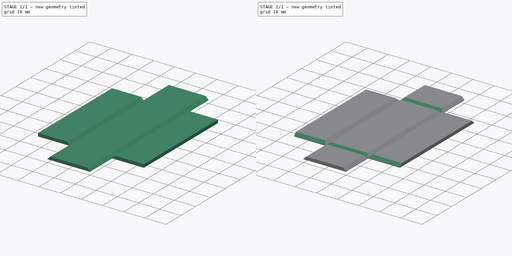
[diagram: build sequence overview — one tinted view per stage of 2, left to right]
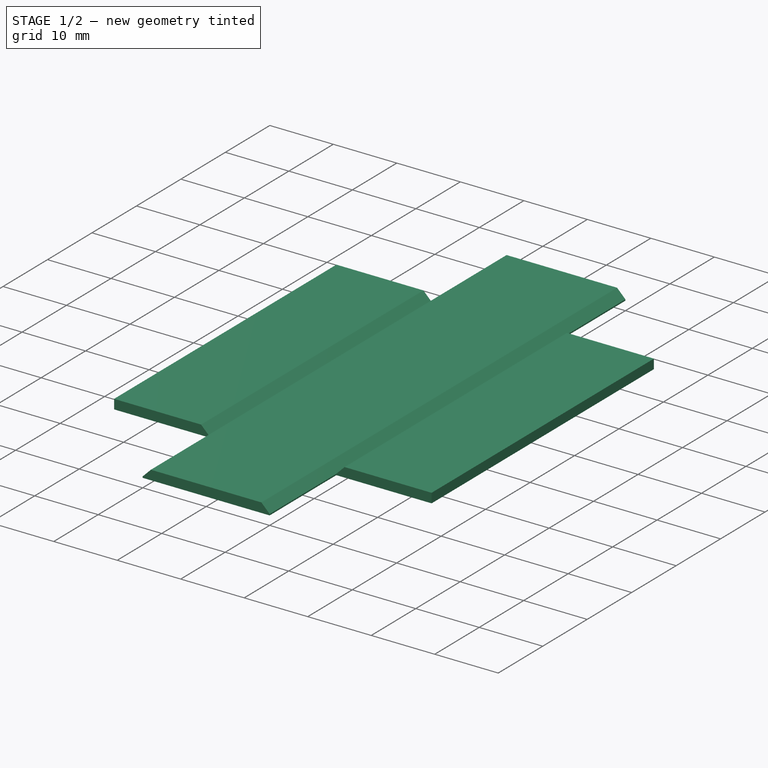
[diagram: stage 1 of 2 — iso view after this stage's code; geometry added in this stage tinted green]
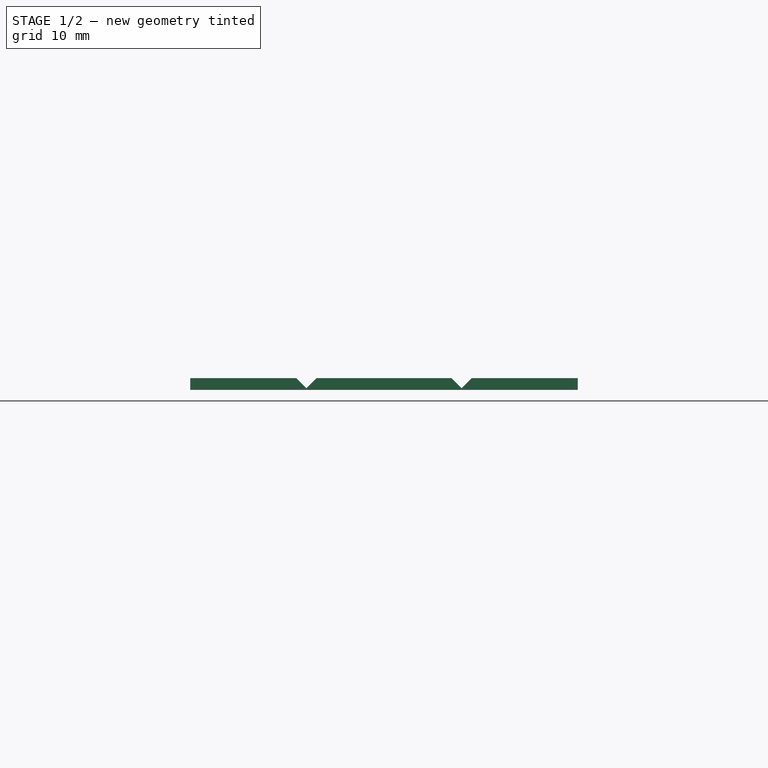
[diagram: stage 1 of 2 — front view after this stage's code; geometry added in this stage tinted green]
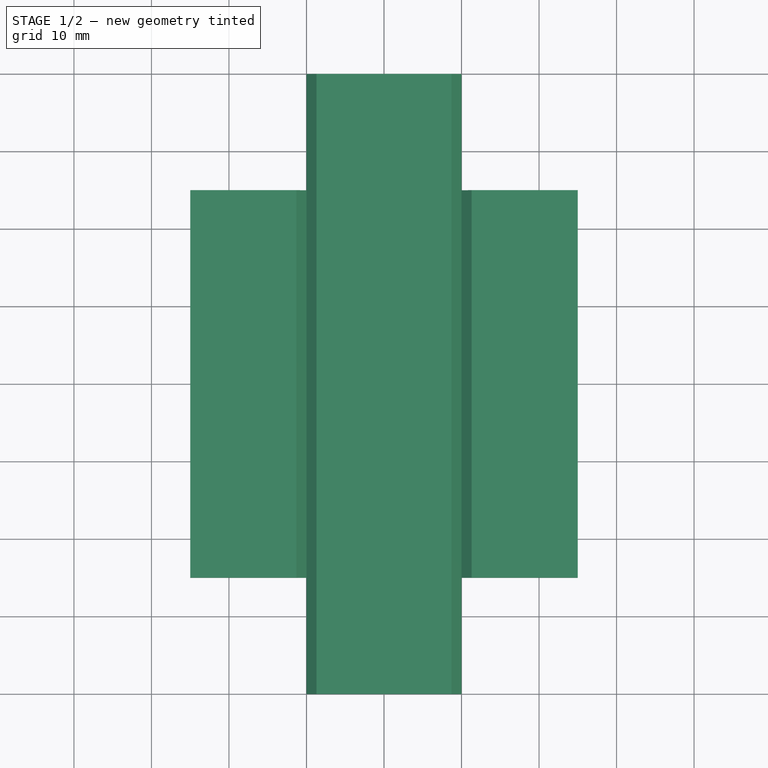
[diagram: stage 1 of 2 — top view after this stage's code; geometry added in this stage tinted green]
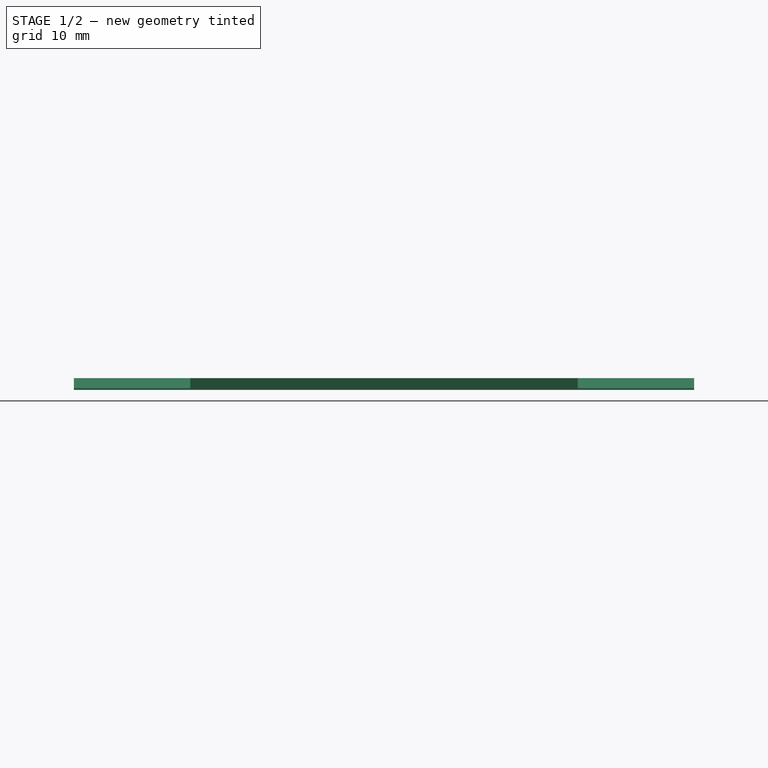
[diagram: stage 1 of 2 — right view after this stage's code; geometry added in this stage tinted green]
FCSTD DOCUMENT  (FreeCAD 1.0R39319 (Git))
Label: Foldable Box
License: All rights reserved
objects: Sketcher::SketchObject×3, PartDesign::Pocket×2, PartDesign::Pad×1, PartDesign::Body×1
note: 16 computed .brp shape members not serialized (recipe doc carries the construction recipe); baked Part::Feature solids carry a one-line shape summary decoded from their .brp

FEATURE [Sketcher::SketchObject] Sketch
  ArcFitTolerance = 1e-06
  AttachmentSupport = -> [XY_Plane]
  FullyConstrained = true
  MakeInternals = false
  MapMode = 5
  sketch-geometry (21):
    g0: LineSegment StartX=-10 StartY=25 StartZ=0 EndX=-10 EndY=-25 EndZ=0
    g1: LineSegment StartX=-10 StartY=-25 StartZ=0 EndX=10 EndY=-25 EndZ=0
    g2: LineSegment StartX=10 StartY=-25 StartZ=0 EndX=10 EndY=25 EndZ=0
    g3: LineSegment StartX=10 StartY=25 StartZ=0 EndX=-10 EndY=25 EndZ=0
    g4: GeomPoint [constr] X=0 Y=0 Z=0
    g5: LineSegment StartX=10 StartY=25 StartZ=0 EndX=10 EndY=-25 EndZ=0
    g6: LineSegment StartX=10 StartY=-25 StartZ=0 EndX=25 EndY=-25 EndZ=0
    g7: LineSegment StartX=25 StartY=-25 StartZ=0 EndX=25 EndY=25 EndZ=0
    g8: LineSegment StartX=25 StartY=25 StartZ=0 EndX=10 EndY=25 EndZ=0
    g9: LineSegment StartX=-10 StartY=-25 StartZ=0 EndX=-10 EndY=25 EndZ=0
    g10: LineSegment StartX=-10 StartY=25 StartZ=0 EndX=-25 EndY=25 EndZ=0
    g11: LineSegment StartX=-25 StartY=25 StartZ=0 EndX=-25 EndY=-25 EndZ=0
    g12: LineSegment StartX=-25 StartY=-25 StartZ=0 EndX=-10 EndY=-25 EndZ=0
    g13: LineSegment StartX=-10 StartY=25 StartZ=0 EndX=10 EndY=25 EndZ=0
    g14: LineSegment StartX=10 StartY=25 StartZ=0 EndX=10 EndY=40 EndZ=0
    g15: LineSegment StartX=10 StartY=40 StartZ=0 EndX=-10 EndY=40 EndZ=0
    g16: LineSegment StartX=-10 StartY=40 StartZ=0 EndX=-10 EndY=25 EndZ=0
    g17: LineSegment StartX=-10 StartY=-25 StartZ=0 EndX=-10 EndY=-40 EndZ=0
    g18: LineSegment StartX=-10 StartY=-40 StartZ=0 EndX=10 EndY=-40 EndZ=0
    g19: LineSegment StartX=10 StartY=-40 StartZ=0 EndX=10 EndY=-25 EndZ=0
    g20: LineSegment StartX=10 StartY=-25 StartZ=0 EndX=-10 EndY=-25 EndZ=0
  constraints (52):
    c: Coincident(g0,g1)
    c: Coincident(g1,g2)
    c: Coincident(g2,g3)
    c: Coincident(g3,g0)
    c: Vertical(g0)
    c: Vertical(g2)
    c: Horizontal(g1)
    c: Horizontal(g3)
    c: Symmetric(g2,g0,g4)
    c: Coincident(g4,g-1)
    c: DistanceY(g0,g0) = 50
    c: DistanceX(g3,g3) = 20
    c: Coincident(g5,g6)
    c: Coincident(g6,g7)
    c: Coincident(g7,g8)
    c: Coincident(g8,g5)
    c: Vertical(g7)
    c: Horizontal(g6)
    c: Horizontal(g8)
    c: Coincident(g5,g2)
    c: Coincident(g5,g1)
    c: Coincident(g9,g10)
    c: Coincident(g10,g11)
    c: Coincident(g11,g12)
    c: Coincident(g12,g9)
    c: Vertical(g11)
    c: Horizontal(g10)
    c: Horizontal(g12)
    c: Coincident(g9,g0)
    c: Coincident(g9,g0)
    c: DistanceX(g8,g8) = 15
    c: Equal(g8,g10)
    c: Coincident(g13,g14)
    c: Coincident(g14,g15)
    c: Coincident(g15,g16)
    c: Coincident(g16,g13)
    c: Horizontal(g15)
    c: Vertical(g14)
    c: Vertical(g16)
    c: Coincident(g13,g0)
    c: Coincident(g17,g18)
    c: Coincident(g18,g19)
    c: Coincident(g19,g20)
    c: Coincident(g20,g17)
    c: Vertical(g17)
    c: Vertical(g19)
    c: Horizontal(g18)
    c: Coincident(g17,g0)
    c: Coincident(g19,g1)
    c: Coincident(g2,g13)
    c: Equal(g19,g6)
    c: Equal(g14,g8)
FEATURE [PartDesign::Pad] Pad
  Direction = (0,0,1)
  Length = 1.5
  Length2 = 10
  Profile = -> Sketch
  ReferenceAxis = -> Sketch [N_Axis]
  Refine = true
  Suppressed = false
  Type = 0
FEATURE [Sketcher::SketchObject] Sketch001
  ArcFitTolerance = 1e-06
  AttachmentSupport = -> [Pad]
  ExternalGeometry = -> [Pad]
  FullyConstrained = true
  MakeInternals = false
  MapMode = 5
  Placement = pos=(0,-40,0) rot=(1,0,0;1.5708rad)
  sketch-geometry (6):
    g0: LineSegment StartX=10 StartY=0.2 StartZ=0 EndX=11.3 EndY=1.5 EndZ=0
    g1: LineSegment StartX=11.3 StartY=1.5 StartZ=0 EndX=8.7 EndY=1.5 EndZ=0
    g2: LineSegment StartX=8.7 StartY=1.5 StartZ=0 EndX=10 EndY=0.2 EndZ=0
    g3: LineSegment StartX=-11.3 StartY=1.5 StartZ=0 EndX=-10 EndY=0.2 EndZ=0
    g4: LineSegment StartX=-10 StartY=0.2 StartZ=0 EndX=-8.7 EndY=1.5 EndZ=0
    g5: LineSegment StartX=-8.7 StartY=1.5 StartZ=0 EndX=-11.3 EndY=1.5 EndZ=0
  constraints (18):
    c: PointOnObject(g0,g-3)
    c: Coincident(g0,g1)
    c: Horizontal(g1)
    c: Coincident(g1,g2)
    c: Coincident(g2,g0)
    c: Equal(g0,g2)
    c: PointOnObject(g-3,g1)
    c: DistanceY(g-3,g0) = 0.2
    c: Perpendicular(g2,g0)
    c: PointOnObject(g3,g-4)
    c: Coincident(g3,g4)
    c: Coincident(g4,g5)
    c: Coincident(g5,g3)
    c: Horizontal(g5)
    c: PointOnObject(g-4,g5)
    c: Perpendicular(g3,g4)
    c: Equal(g3,g4)
    c: Horizontal(g3,g0)
FEATURE [PartDesign::Pocket] Pocket
  BaseFeature = -> Pad
  Direction = (0,1,-2e-16)
  Length = 5
  Length2 = 5
  Profile = -> Sketch001
  ReferenceAxis = -> Sketch001 [N_Axis]
  Refine = true
  Suppressed = false
  Type = 1
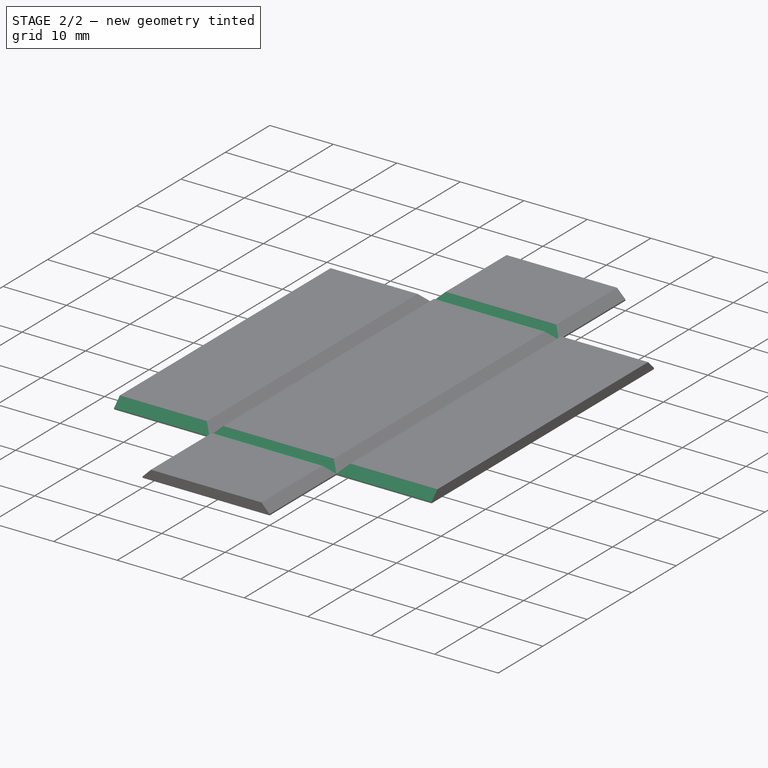
[diagram: stage 2 of 2 — iso view after this stage's code; geometry added in this stage tinted green]
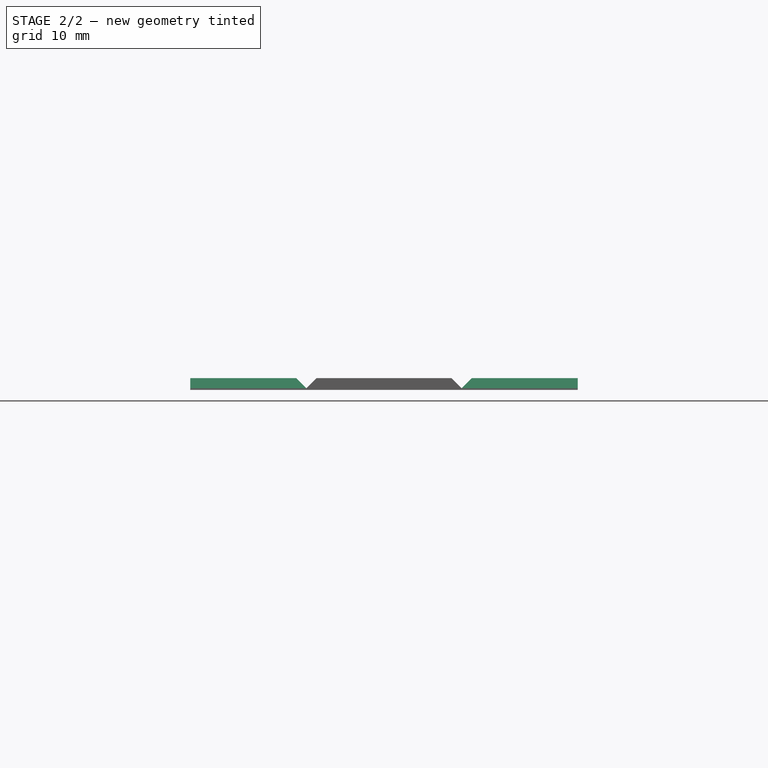
[diagram: stage 2 of 2 — front view after this stage's code; geometry added in this stage tinted green]
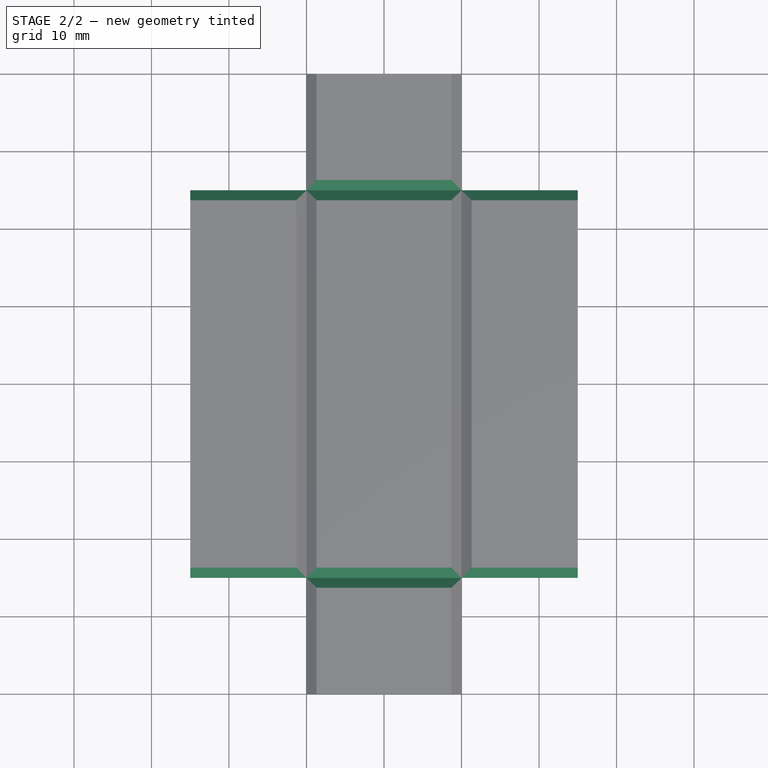
[diagram: stage 2 of 2 — top view after this stage's code; geometry added in this stage tinted green]
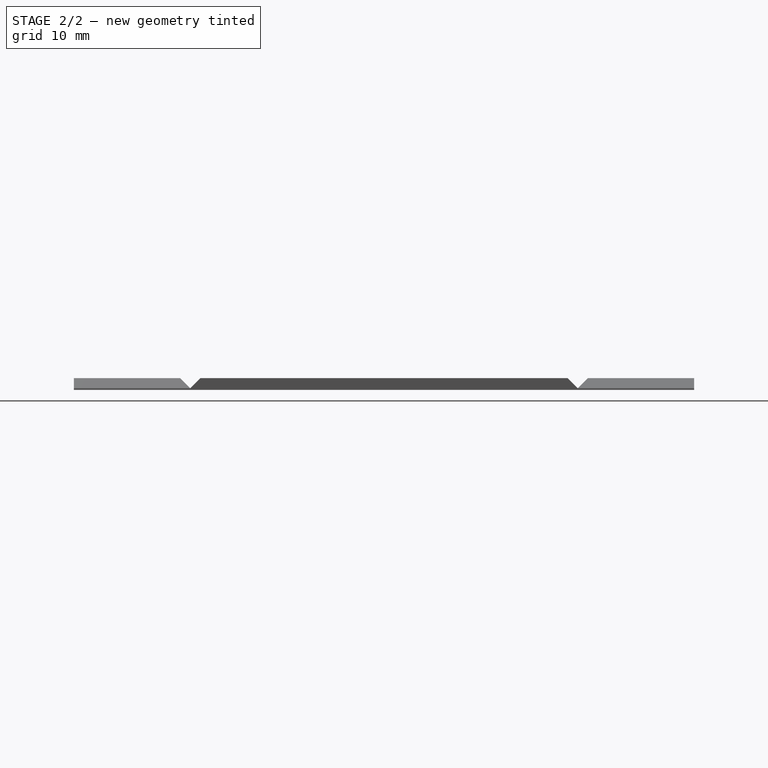
[diagram: stage 2 of 2 — right view after this stage's code; geometry added in this stage tinted green]
FEATURE [Sketcher::SketchObject] Sketch002
  ArcFitTolerance = 1e-06
  AttachmentSupport = -> [Pocket]
  ExternalGeometry = -> [Pocket]
  FullyConstrained = true
  MakeInternals = false
  MapMode = 5
  Placement = pos=(25,0,0) rot=(0.57735,0.57735,0.57735;2.0944rad)
  sketch-geometry (6):
    g0: LineSegment StartX=-25 StartY=0.2 StartZ=0 EndX=-23.7 EndY=1.5 EndZ=0
    g1: LineSegment StartX=-23.7 StartY=1.5 StartZ=0 EndX=-26.3 EndY=1.5 EndZ=0
    g2: LineSegment StartX=-26.3 StartY=1.5 StartZ=0 EndX=-25 EndY=0.2 EndZ=0
    g3: LineSegment StartX=25 StartY=0.2 StartZ=0 EndX=26.3 EndY=1.5 EndZ=0
    g4: LineSegment StartX=26.3 StartY=1.5 StartZ=0 EndX=23.7 EndY=1.5 EndZ=0
    g5: LineSegment StartX=23.7 StartY=1.5 StartZ=0 EndX=25 EndY=0.2 EndZ=0
  constraints (16):
    c: Coincident(g-4,g0)
    c: Coincident(g0,g1)
    c: Horizontal(g1)
    c: Coincident(g1,g2)
    c: Coincident(g2,g0)
    c: Equal(g0,g2)
    c: Perpendicular(g2,g0)
    c: PointOnObject(g-3,g1)
    c: Coincident(g-5,g3)
    c: Coincident(g3,g4)
    c: Horizontal(g4)
    c: Coincident(g4,g5)
    c: Coincident(g5,g3)
    c: Equal(g3,g5)
    c: Perpendicular(g5,g3)
    c: PointOnObject(g-6,g4)
FEATURE [PartDesign::Pocket] Pocket001
  BaseFeature = -> Pocket
  Direction = (-1,0,0)
  Length = 5
  Length2 = 5
  Profile = -> Sketch002
  ReferenceAxis = -> Sketch002 [N_Axis]
  Refine = true
  Suppressed = false
  Type = 1
FEATURE [PartDesign::Body] Body
  AllowCompound = false
  Group = -> [Sketch,Pad,Sketch001,Pocket,Sketch002,Pocket001]
  Origin = -> Origin
  Tip = -> Pocket001
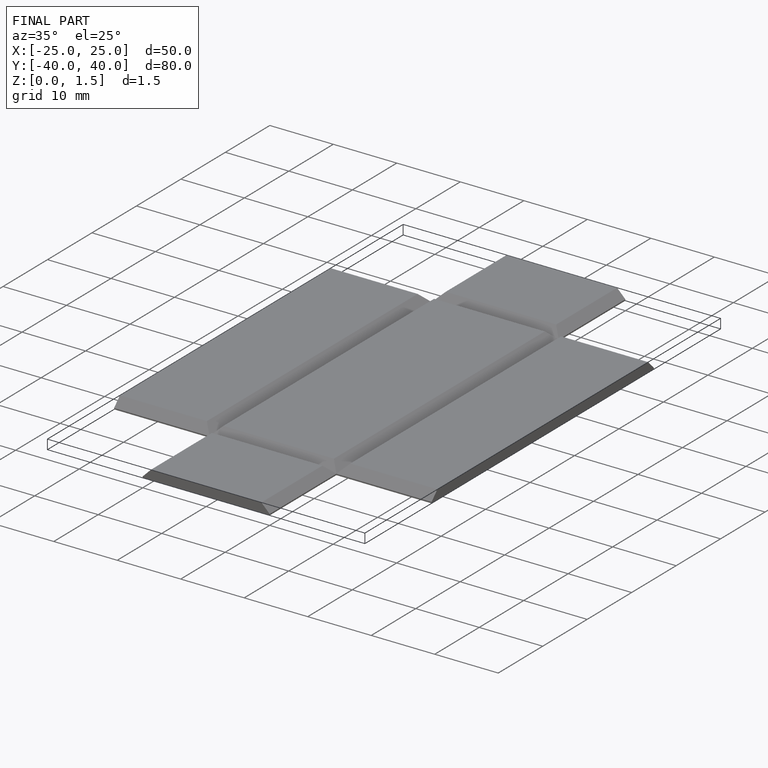
[diagram: finished part — iso view with bounding-box wireframe]
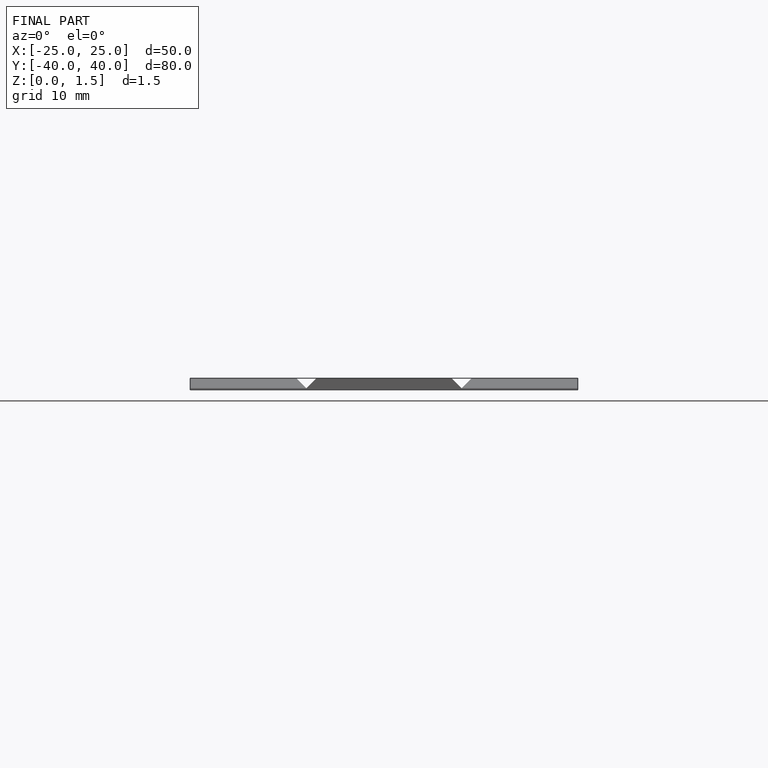
[diagram: finished part — front view with bounding-box wireframe]
